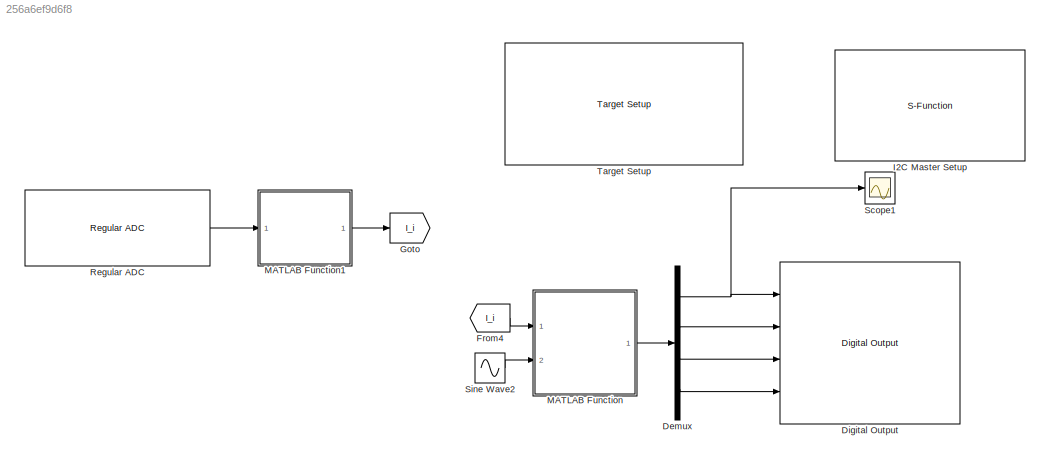
MODEL slx_256a6ef9d6f8
KIND model
CONFIG AbsTol = auto
CONFIG EnableMultiTasking = off
CONFIG FixedStep = auto
CONFIG MaxStep = auto
CONFIG MinStep = auto
CONFIG PreLoadFcn = waijung.modelPreload; % Required for working with Waijung Blockset. Do not remove.
CONFIG RelTol = 1e-3
CONFIG SampleTimeConstraint = Unconstrained
CONFIG Solver = FixedStepAuto
CONFIG SolverName = FixedStepAuto
CONFIG StartTime = 0.0
CONFIG StopTime = 10.0
BLOCK [Demux] Demux
  DisplayOption = bar
  Ports = [1, 4]
BLOCK [Reference] Digital Output  REF=stm32f4_io_lib/Digital Output
  Ports = [4]
  SourceBlock = stm32f4_io_lib/Digital Output
  SourceProductName = Waijung Blockset
  SourceType = stm32f4_digital_output
BLOCK [From] From4
  GotoTag = I_i
BLOCK [Goto] Goto
  GotoTag = I_i
BLOCK [S-Function] I2C Master Setup
  EnableBusSupport = off
  FunctionName = stm32f4_i2c
  Parameters = configuration,module,transfer,clkspeed,timeout,sdapin,sclpin,writecount,readcount,inputtypearray,outputtypearray,confstr,sampletime,sampletimestr,blockid
  Ports = []
  SFcnIsStateOwnerBlock = off
  SFunctionDeploymentMode = off
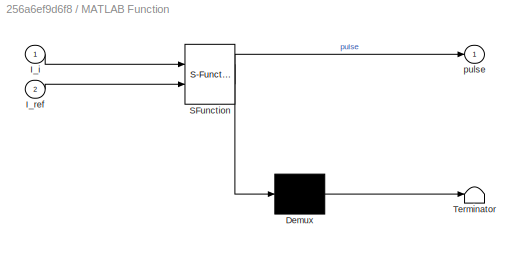
BLOCK [SubSystem] MATLAB Function
  ErrorFcn = Stateflow.Translate.translate
  PermitHierarchicalResolution = ExplicitOnly
  Ports = [2, 1]
  RequestExecContextInheritance = off
  SFBlockType = MATLAB Function
  TreatAsAtomicUnit = on
BLOCK [Demux] MATLAB Function/ Demux 
  Outputs = 1
  Ports = [1, 1]
BLOCK [S-Function] MATLAB Function/ SFunction 
  EnableBusSupport = on
  FunctionName = sf_sfun
  PortCounts = [2 2]
  Ports = [2, 2]
  SFcnIsStateOwnerBlock = off
  SFunctionDeploymentMode = off
  Tag = Stateflow S-Function Code_MPC 2
BLOCK [Terminator] MATLAB Function/ Terminator 
BLOCK [Inport] MATLAB Function/I_i
  IconDisplay = Port number
BLOCK [Inport] MATLAB Function/I_ref
  IconDisplay = Port number
  Port = 2
BLOCK [Outport] MATLAB Function/pulse
  IconDisplay = Port number
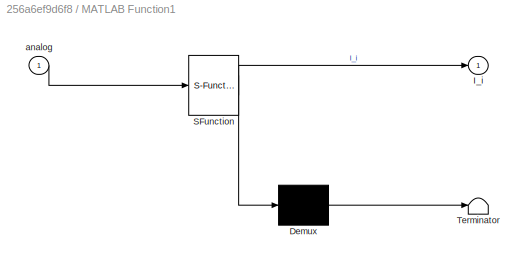
BLOCK [SubSystem] MATLAB Function1
  ErrorFcn = Stateflow.Translate.translate
  PermitHierarchicalResolution = ExplicitOnly
  Ports = [1, 1]
  RequestExecContextInheritance = off
  SFBlockType = MATLAB Function
  TreatAsAtomicUnit = on
BLOCK [Demux] MATLAB Function1/ Demux 
  Outputs = 1
  Ports = [1, 1]
BLOCK [S-Function] MATLAB Function1/ SFunction 
  EnableBusSupport = off
  FunctionName = sf_sfun
  PortCounts = [1 2]
  Ports = [1, 2]
  SFcnIsStateOwnerBlock = off
  SFunctionDeploymentMode = off
  Tag = Stateflow S-Function Code_MPC 1
BLOCK [Terminator] MATLAB Function1/ Terminator 
BLOCK [Outport] MATLAB Function1/I_i
  IconDisplay = Port number
BLOCK [Inport] MATLAB Function1/analog
  IconDisplay = Port number
BLOCK [Reference] Regular ADC  REF=stm32f4_adc_lib/Regular ADC
  Ports = [0, 1]
  SourceBlock = stm32f4_adc_lib/Regular ADC
  SourceProductName = Waijung Blockset
  SourceType = stm32f4_regular_adc
BLOCK [Scope] Scope1
  Floating = off
  NumInputPorts = 1
  Ports = [1]
  ScopeSpecificationString = Simulink.scopes.TimeScopeBlockCfg('CurrentConfiguration', extmgr.ConfigurationSet(extmgr.Configuration('Core','General UI',true),extmgr.Configuration('Core','Source UI',true),extmgr.Configuration('Sources','WiredSimulink',true,'DataLoggingSaveFormat','StructureWithTime','DataLoggingLimitDataPoints',true,'DataLoggingDecimation','1','DataLoggingDecimateData',true,'DataLoggingVariableName','ScopeData...<+1705ch>
BLOCK [Sin] Sine Wave2
  Frequency = 2*pi*50
  Ports = [0, 1]
  SampleTime = 1e-4
BLOCK [Reference] Target Setup  REF=stm32f4_device_config_lib/Target Setup
  Ports = []
  Priority = 100
  SourceBlock = stm32f4_device_config_lib/Target Setup
  SourceProductName = Waijung Blockset
  SourceType = stm32f4_target_setup
NET Demux:1 -> Digital Output:1, Scope1:1
LINE Demux:2 -> Digital Output:2
LINE Demux:3 -> Digital Output:3
LINE Demux:4 -> Digital Output:4
LINE From4:1 -> MATLAB Function:1
LINE MATLAB Function1:1 -> Goto:1
LINE MATLAB Function:1 -> Demux:1
LINE Regular ADC:1 -> MATLAB Function1:1
LINE Sine Wave2:1 -> MATLAB Function:2
note: NET lines group one-source signal fan-out (src -> all destinations, sorted); 1:1 wires keep LINE
CHART MATLAB Function1 states=1 transitions=1
  STATE_LABEL 'eML_blk_kernel()'
  STATE_LABEL 'SCRIPT:\nfunction I_i = fcn(analog)\n\nI_i = analog*(3.3/4095)-1.65;\n'
CHART MATLAB Function states=1 transitions=1
  STATE_LABEL 'eML_blk_kernel()'
  STATE_LABEL 'SCRIPT:\nfunction pulse = MPC(I_i, I_ref)\ng_opt = inf;\nL = 4;\nR = 1000;\nVdc = 300;\nTs = 1e-4;\nS1_opt = 0;\nS2_opt = 0;\nfor S1 = 0:1\n    for S2 = 0:1\n        U1 = S1*Vdc;\n        U2 = S2*Vdc;\n        U = U1-U2;\n        I_i1 = (Ts/L)*U + ((-R*Ts + L)/L)*I_i; \n        g = abs(I_i1 - I_ref);\n    if (g < g_opt) \n        S1_opt = S1;\n        S2_opt = S2;\n        g_opt = g;\n    end\n    end  \nend\nS1 = S1_op...<+57ch>'
